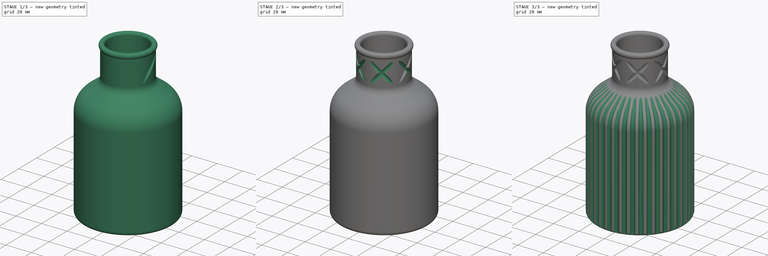
[diagram: build sequence overview — one tinted view per stage of 3, left to right]
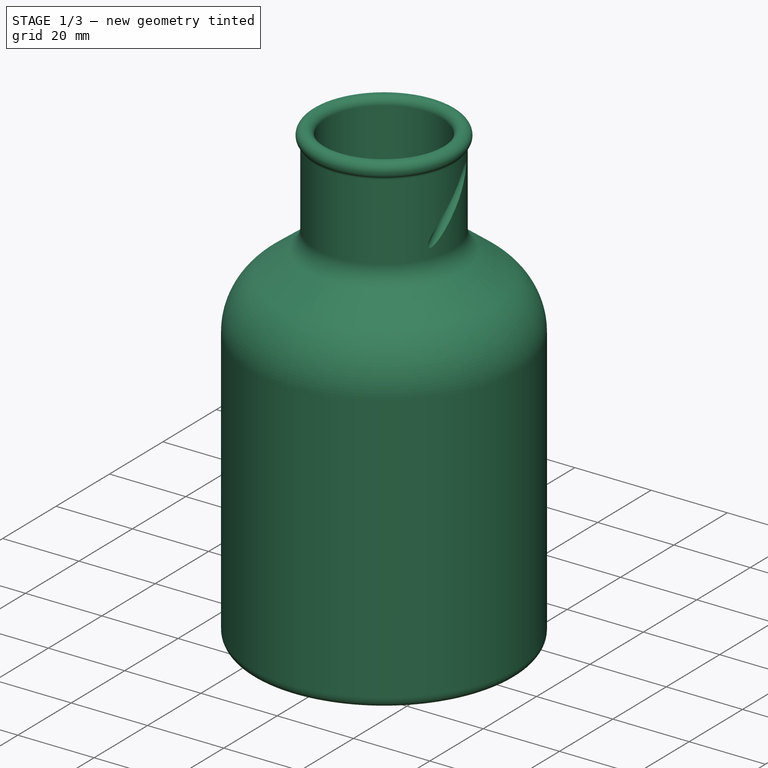
[diagram: stage 1 of 3 — iso view after this stage's code; geometry added in this stage tinted green]
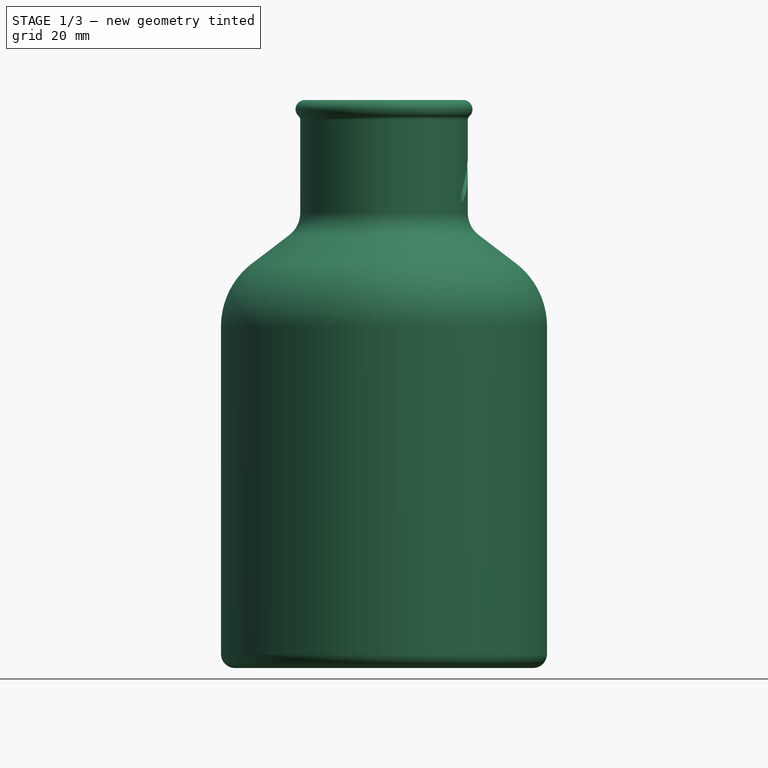
[diagram: stage 1 of 3 — front view after this stage's code; geometry added in this stage tinted green]
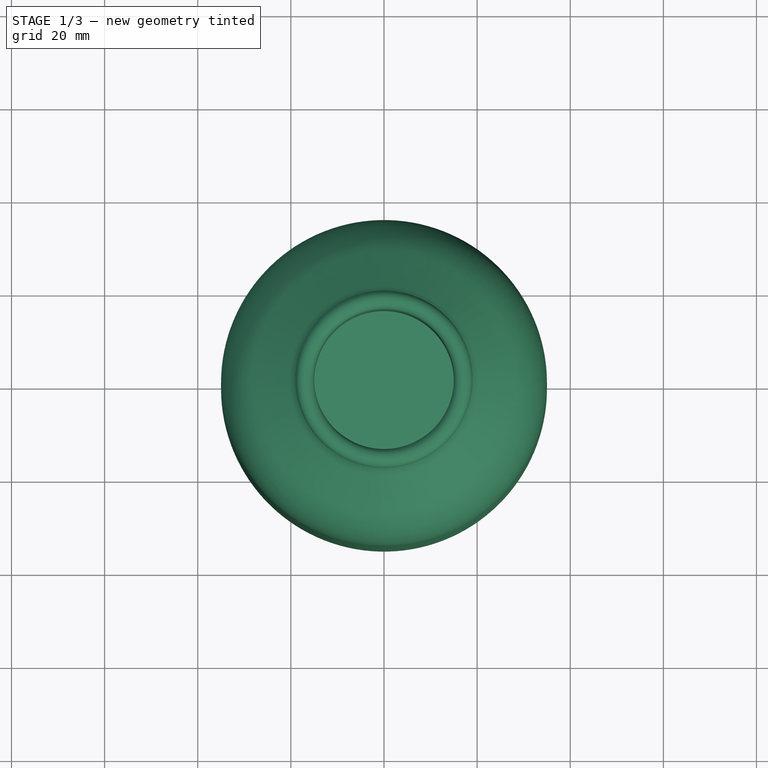
[diagram: stage 1 of 3 — top view after this stage's code; geometry added in this stage tinted green]
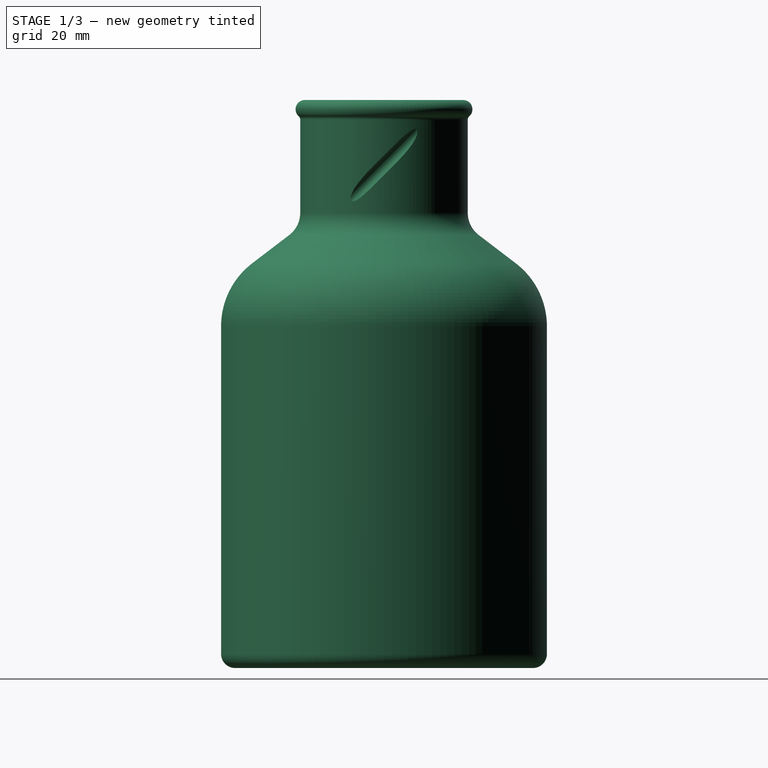
[diagram: stage 1 of 3 — right view after this stage's code; geometry added in this stage tinted green]
FCSTD DOCUMENT  (FreeCAD 1.0R39319 (Git))
Label: vase2
License: All rights reserved
LicenseURL: https://en.wikipedia.org/wiki/All_rights_reserved
objects: Sketcher::SketchObject×5, PartDesign::Pocket×2, PartDesign::PolarPattern×2, PartDesign::Revolution×1, PartDesign::SubtractivePipe×1, PartDesign::Body×1
note: 27 computed .brp shape members not serialized (recipe doc carries the construction recipe); baked Part::Feature solids carry a one-line shape summary decoded from their .brp

FEATURE [Sketcher::SketchObject] Sketch
  ArcFitTolerance = 1e-06
  AttachmentOffset = pos=(35,0,0) rot=(0,0,1;0rad)
  AttachmentSupport = -> [XY_Plane]
  FullyConstrained = false
  MakeInternals = false
  MapMode = 5
  Placement = pos=(35,0,0) rot=(0,0,1;0rad)
  expr: Constraints[23] = 360 / 40
  sketch-geometry (9):
    g0: ArcOfCircle CenterX=0 CenterY=0 CenterZ=0 NormalX=0 NormalY=0 NormalZ=1 AngleXU=0 Radius=1.5 StartAngle=2.16072 EndAngle=4.12247
    g1: ArcOfCircle CenterX=-1.75172 CenterY=2.6167 CenterZ=0 NormalX=0 NormalY=0 NormalZ=1 AngleXU=0 Radius=1.64891 StartAngle=5.30231 EndAngle=6.36173
    g2: ArcOfCircle CenterX=-1.75172 CenterY=-2.6167 CenterZ=0 NormalX=0 NormalY=0 NormalZ=1 AngleXU=0 Radius=1.64891 StartAngle=6.20465 EndAngle=7.26406
    g3: ArcOfCircle [constr] CenterX=-35 CenterY=0 CenterZ=0 NormalX=0 NormalY=0 NormalZ=1 AngleXU=0 Radius=35 StartAngle=6.20465 EndAngle=6.36173
    g4: LineSegment [constr] StartX=-35 StartY=0 StartZ=0 EndX=-0.107893 EndY=2.74607 EndZ=0
    g5: LineSegment [constr] StartX=-35 StartY=0 StartZ=0 EndX=-0.107893 EndY=-2.74607 EndZ=0
    g6: LineSegment StartX=-0.107893 StartY=2.74607 StartZ=0 EndX=1.08363 EndY=2.74607 EndZ=0
    g7: LineSegment StartX=1.08363 StartY=2.74607 StartZ=0 EndX=1.08363 EndY=-2.74607 EndZ=0
    g8: LineSegment StartX=1.08363 StartY=-2.74607 StartZ=0 EndX=-0.107893 EndY=-2.74607 EndZ=0
  constraints (25):
    c: Radius(g0) = 1.5
    c: Coincident(g0,g-1)
    c: PointOnObject(g0,g2)
    c: Tangent(g0,g1) = 1.5708
    c: Tangent(g2,g0) = 1.5708
    c: Coincident(g3,g2)
    c: Coincident(g3,g1)
    c: Radius(g3) = 35
    c: Coincident(g4,g3)
    c: Coincident(g4,g1)
    c: Coincident(g5,g3)
    c: Coincident(g5,g2)
    c: Vertical(g2,g1)
    c: PointOnObject(g4,g-1)
    c: PointOnObject(g0,g3)
    c: PointOnObject(g2,g5)
    c: Coincident(g1,g6)
    c: Horizontal(g6)
    c: Coincident(g6,g7)
    c: Vertical(g7)
    c: Coincident(g7,g8)
    c: Horizontal(g8)
    c: Coincident(g2,g8)
    c: Angle(g5,g4) = 0.15708
    c: Equal(g1,g2)
FEATURE [Sketcher::SketchObject] Sketch001
  ArcFitTolerance = 1e-06
  AttachmentSupport = -> [XZ_Plane]
  FullyConstrained = true
  MakeInternals = false
  MapMode = 5
  Placement = pos=(0,0,0) rot=(1,0,0;1.5708rad)
  sketch-geometry (18):
    g0: LineSegment StartX=0 StartY=0 StartZ=0 EndX=32 EndY=0 EndZ=0
    g1: ArcOfCircle CenterX=32 CenterY=3 CenterZ=0 NormalX=0 NormalY=0 NormalZ=1 AngleXU=0 Radius=3 StartAngle=4.71239 EndAngle=6.28319
    g2: LineSegment StartX=35 StartY=3 StartZ=0 EndX=35 EndY=73.4123 EndZ=0
    g3: ArcOfCircle CenterX=18 CenterY=73.4123 CenterZ=0 NormalX=0 NormalY=0 NormalZ=1 AngleXU=0 Radius=17 StartAngle=0 EndAngle=0.91909
    g4: ArcOfCircle CenterX=24 CenterY=97.7639 CenterZ=0 NormalX=0 NormalY=0 NormalZ=1 AngleXU=0 Radius=6 StartAngle=3.14159 EndAngle=4.06068
    g5: LineSegment StartX=18 StartY=97.7639 StartZ=0 EndX=18 EndY=117.764 EndZ=0
    g6: ArcOfCircle CenterX=17 CenterY=120 CenterZ=0 NormalX=0 NormalY=0 NormalZ=1 AngleXU=0 Radius=2 StartAngle=5.44212 EndAngle=9.42478
    g7: LineSegment StartX=15 StartY=120 StartZ=0 EndX=15 EndY=97.7639 EndZ=0
    g8: ArcOfCircle CenterX=24 CenterY=97.7639 CenterZ=0 NormalX=0 NormalY=0 NormalZ=1 AngleXU=0 Radius=9 StartAngle=3.14159 EndAngle=4.06068
    g9: ArcOfCircle CenterX=18 CenterY=73.4123 CenterZ=0 NormalX=0 NormalY=0 NormalZ=1 AngleXU=0 Radius=14 StartAngle=2e-16 EndAngle=0.91909
    g10: LineSegment StartX=32 StartY=73.4123 StartZ=0 EndX=32 EndY=3 EndZ=0
    g11: LineSegment StartX=32 StartY=3 StartZ=0 EndX=0 EndY=3 EndZ=0
    g12: LineSegment StartX=0 StartY=3 StartZ=0 EndX=0 EndY=0 EndZ=0
    g13: LineSegment [constr] StartX=15 StartY=117.764 StartZ=0 EndX=18 EndY=117.764 EndZ=0
    g14: LineSegment StartX=18.5411 StartY=90.6085 StartZ=0 EndX=26.4916 EndY=84.543 EndZ=0
    g15: LineSegment StartX=20.3607 StartY=92.9936 StartZ=0 EndX=28.3112 EndY=86.9282 EndZ=0
    g16: ArcOfCircle CenterX=19 CenterY=117.764 CenterZ=0 NormalX=0 NormalY=0 NormalZ=1 AngleXU=0 Radius=1 StartAngle=2.30052 EndAngle=3.14159
    g17: GeomPoint X=15 Y=108.882 Z=0
  constraints (45):
    c: Horizontal(g0)
    c: Tangent(g0,g1) = -1.5708
    c: Vertical(g2)
    c: Tangent(g2,g3) = -1.5708
    c: Tangent(g7,g8) = -1.5708
    c: Coincident(g10,g1)
    c: Vertical(g10)
    c: Coincident(g10,g11)
    c: PointOnObject(g11,g-2)
    c: Horizontal(g11)
    c: Coincident(g11,g12)
    c: Coincident(g12,g0)
    c: Coincident(g0,g-1)
    c: Tangent(g1,g2) = -1.5708
    c: Tangent(g9,g10) = 1.5708
    c: Tangent(g4,g5) = 1.5708
    c: Tangent(g6,g7) = -1.5708
    c: Coincident(g3,g9)
    c: Coincident(g4,g8)
    c: Vertical(g5)
    c: Vertical(g7)
    c: PointOnObject(g13,g7)
    c: Equal(g12,g13)
    c: DistanceY(g12,g12) = 3
    c: Diameter(g6) = 4
    c: Radius(g4) = 6
    c: DistanceY(g5,g5) = 20
    c: DistanceX(g6) = 15
    c: DistanceY(g6) = 120
    c: Vertical(g3,g4)
    c: DistanceX(g1) = 35
    c: Tangent(g8,g14) = -1.5708
    c: Tangent(g4,g15) = -1.5708
    c: Tangent(g3,g15) = 1.5708
    c: Tangent(g9,g14) = 1.5708
    c: Distance(g15) = 10
    c: Coincident(g5,g13)
    c: Tangent(g16,g6) = 1.5708
    c: Tangent(g16,g5) = 1.5708
    c: Radius(g16) = 1
    c: DistanceX(g5) = 18
    c: Horizontal(g13)
    c: Symmetric(g7,g7,g17)
    c: DistanceY(g17) = 108.882
    c: Radius(g3) = 17
FEATURE [PartDesign::Revolution] Revolution
  Angle = 360
  Angle2 = 60
  Axis = (0,2e-16,1)
  Base = (0,0,0)
  Placement = pos=(0,0,0) rot=(1,0,0;1.5708rad)
  Profile = -> Sketch001
  ReferenceAxis = -> Sketch001 [V_Axis]
  Refine = true
  Reversed = true
  Suppressed = false
  Type = 0
FEATURE [Sketcher::SketchObject] Sketch002
  ArcFitTolerance = 1e-06
  AttachmentOffset = pos=(18,0,108) rot=(1,0,0;-0.785398rad)
  AttachmentSupport = -> [XY_Plane]
  FullyConstrained = true
  MakeInternals = false
  MapMode = 5
  Placement = pos=(18,0,108) rot=(1,0,0;5.49779rad)
  sketch-geometry (1):
    g0: Circle CenterX=0 CenterY=0 CenterZ=0 NormalX=0 NormalY=0 NormalZ=1 AngleXU=0 Radius=1.5
  constraints (2):
    c: Coincident(g0,g-1)
    c: Radius(g0) = 1.5
FEATURE [PartDesign::Pocket] Pocket
  BaseFeature = -> Revolution
  Direction = (0,-0.707107,-0.707107)
  Length = 25
  Length2 = 5
  Midplane = true
  Placement = pos=(0,0,0) rot=(1,0,0;1.5708rad)
  Profile = -> Sketch002
  ReferenceAxis = -> Sketch002 [N_Axis]
  Refine = true
  Suppressed = false
  Type = 0
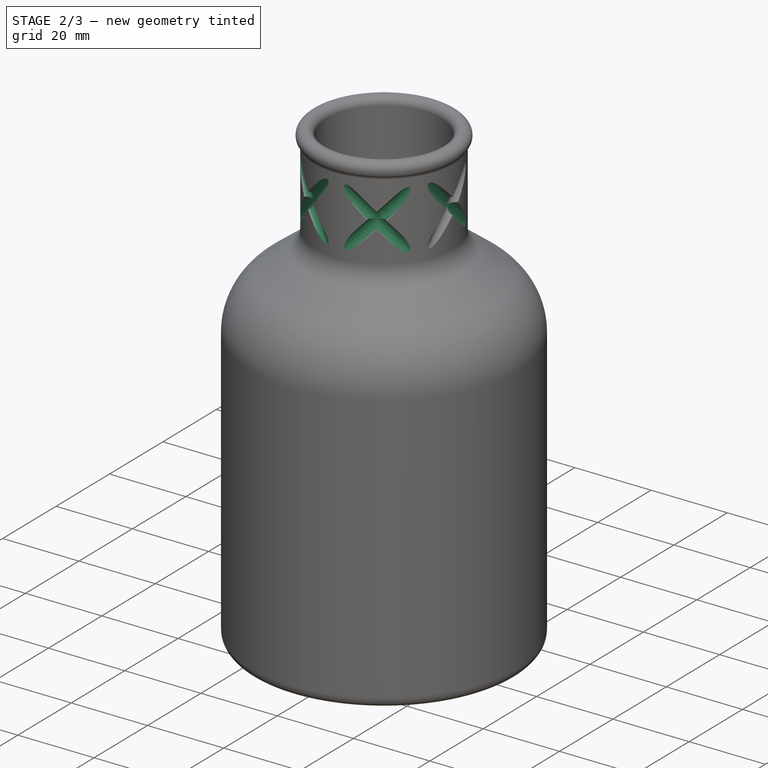
[diagram: stage 2 of 3 — iso view after this stage's code; geometry added in this stage tinted green]
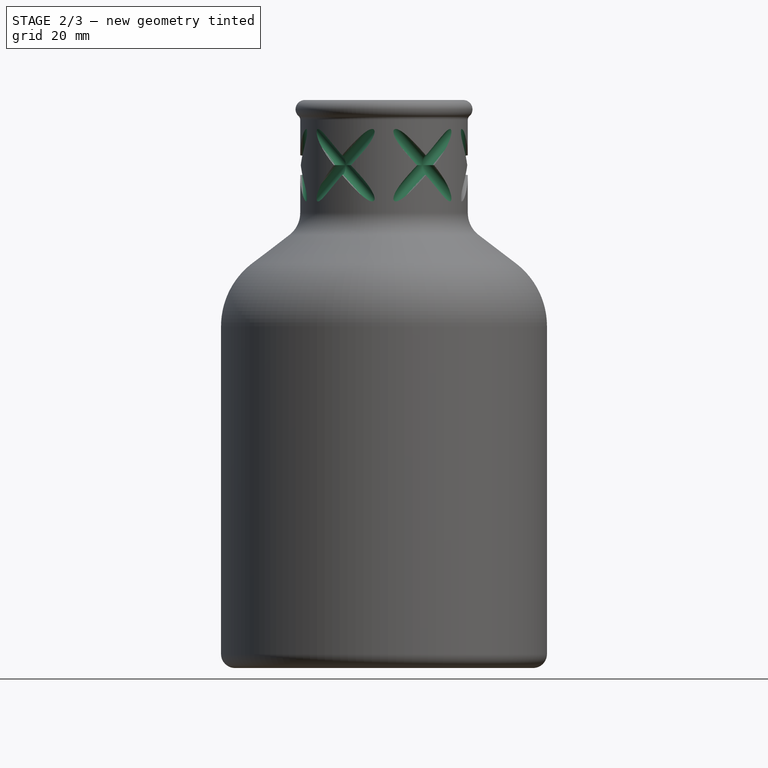
[diagram: stage 2 of 3 — front view after this stage's code; geometry added in this stage tinted green]
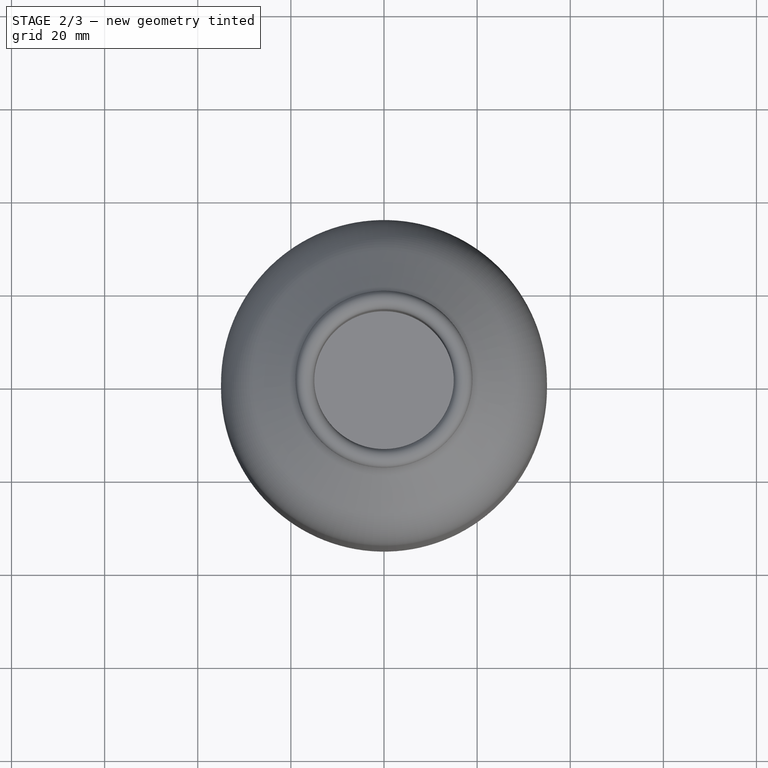
[diagram: stage 2 of 3 — top view after this stage's code; geometry added in this stage tinted green]
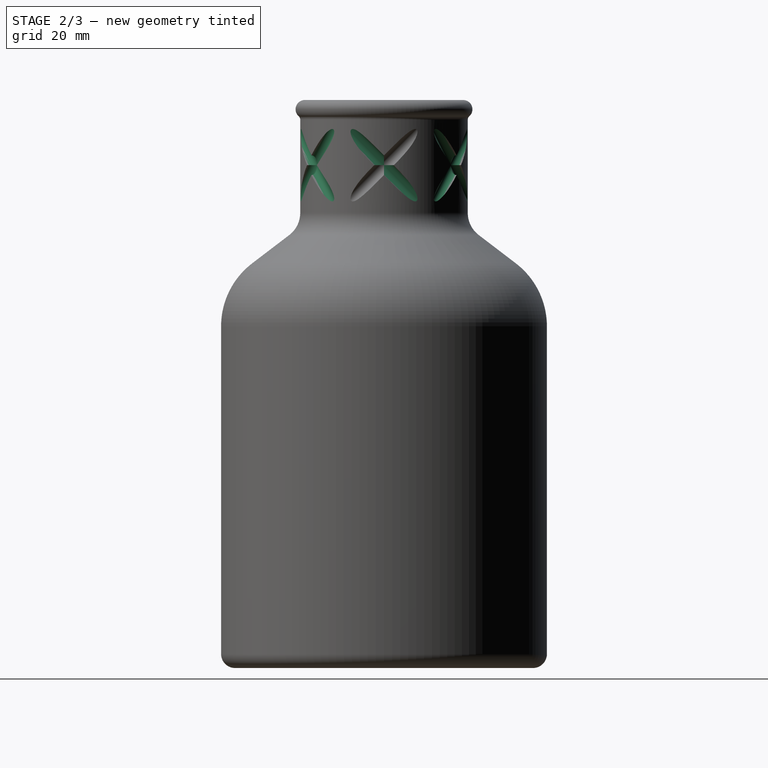
[diagram: stage 2 of 3 — right view after this stage's code; geometry added in this stage tinted green]
FEATURE [Sketcher::SketchObject] Sketch003
  ArcFitTolerance = 1e-06
  AttachmentOffset = pos=(18,0,108) rot=(1,0,0;0.785398rad)
  AttachmentSupport = -> [XY_Plane]
  FullyConstrained = true
  MakeInternals = false
  MapMode = 5
  Placement = pos=(18,0,108) rot=(1,0,0;0.785398rad)
  sketch-geometry (1):
    g0: Circle CenterX=0 CenterY=0 CenterZ=0 NormalX=0 NormalY=0 NormalZ=1 AngleXU=0 Radius=1.5
  constraints (2):
    c: Coincident(g0,g-1)
    c: Radius(g0) = 1.5
FEATURE [PartDesign::Pocket] Pocket001
  BaseFeature = -> Pocket
  Direction = (0,0.707107,-0.707107)
  Length = 25
  Length2 = 5
  Midplane = true
  Placement = pos=(0,0,0) rot=(1,0,0;1.5708rad)
  Profile = -> Sketch003
  ReferenceAxis = -> Sketch003 [N_Axis]
  Refine = true
  Suppressed = false
  Type = 0
FEATURE [PartDesign::PolarPattern] PolarPattern
  Angle = 360
  Axis = -> Z_Axis
  BaseFeature = -> Pocket001
  Mode = 0
  Occurrences = 6
  Offset = 120
  Originals = -> [Pocket,Pocket001]
  Placement = pos=(0,0,0) rot=(1,0,0;1.5708rad)
  Refine = true
  Suppressed = false
  TransformMode = 0
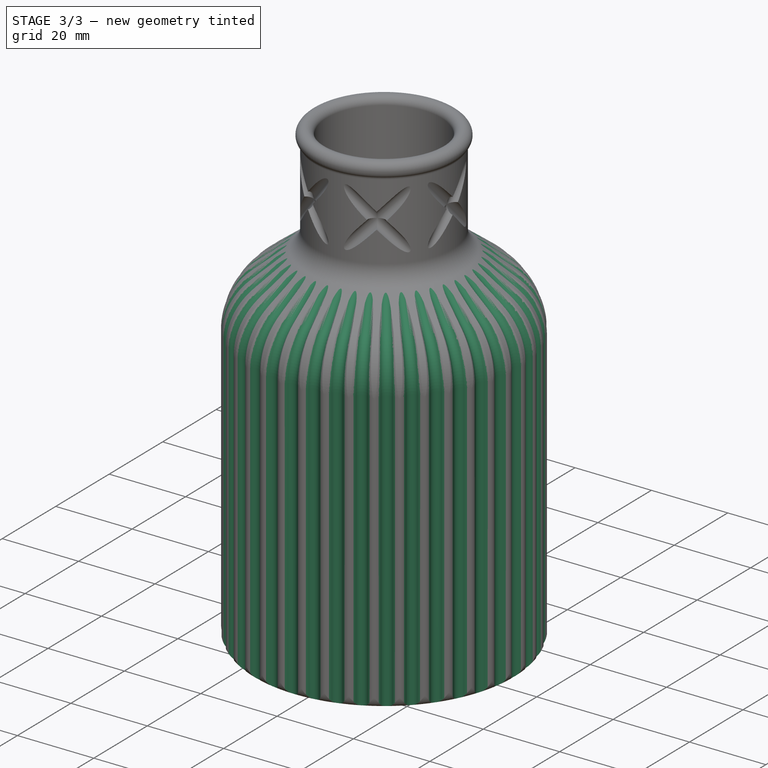
[diagram: stage 3 of 3 — iso view after this stage's code; geometry added in this stage tinted green]
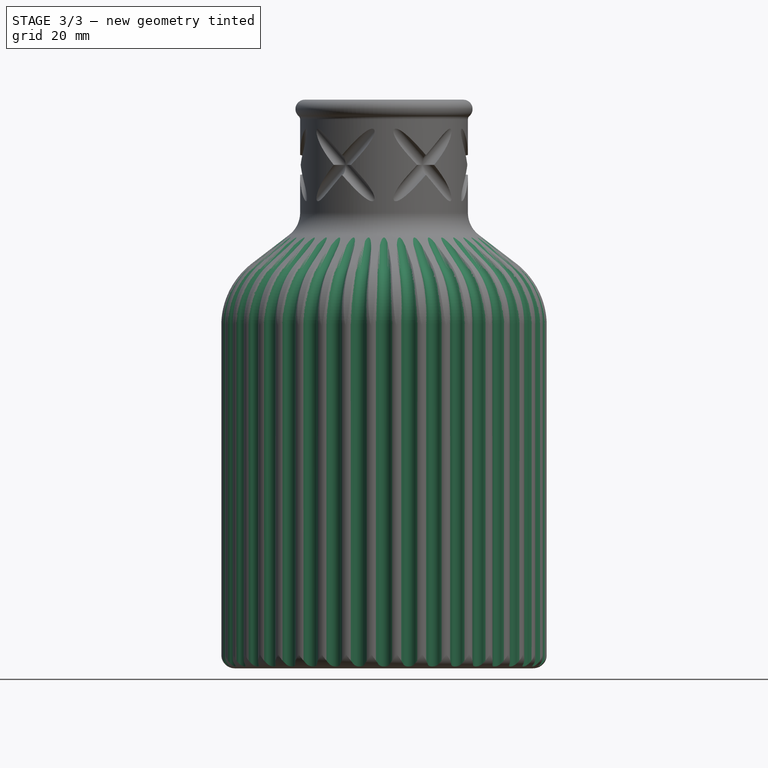
[diagram: stage 3 of 3 — front view after this stage's code; geometry added in this stage tinted green]
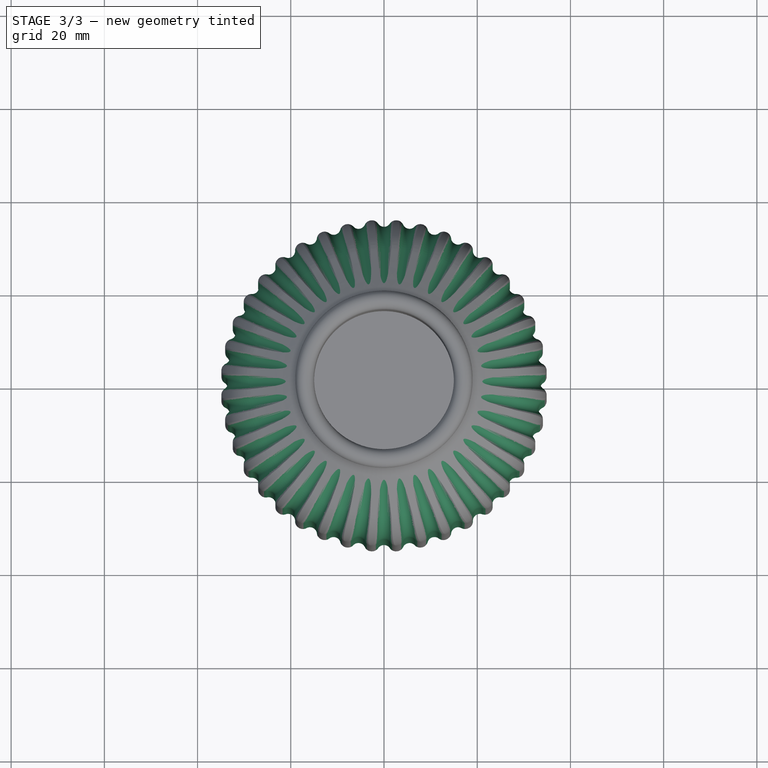
[diagram: stage 3 of 3 — top view after this stage's code; geometry added in this stage tinted green]
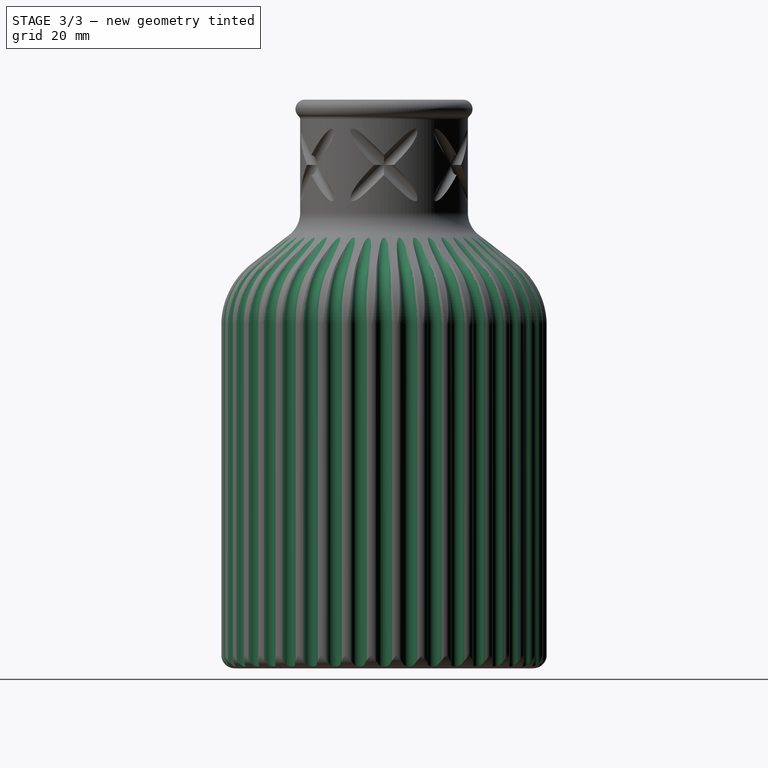
[diagram: stage 3 of 3 — right view after this stage's code; geometry added in this stage tinted green]
FEATURE [Sketcher::SketchObject] Sketch004
  ArcFitTolerance = 1e-06
  AttachmentSupport = -> [XZ_Plane]
  ExternalGeometry = -> [PolarPattern]
  FullyConstrained = false
  MakeInternals = false
  MapMode = 5
  Placement = pos=(0,0,0) rot=(1,0,0;1.5708rad)
  sketch-geometry (4):
    g0: LineSegment StartX=35 StartY=0 StartZ=0 EndX=35 EndY=73.973 EndZ=0
    g1: ArcOfCircle CenterX=18 CenterY=73.973 CenterZ=0 NormalX=0 NormalY=0 NormalZ=1 AngleXU=0 Radius=17 StartAngle=1e-16 EndAngle=0.80964
    g2: LineSegment StartX=29.7259 StartY=86.2817 StartZ=0 EndX=21.4644 EndY=94.1521 EndZ=0
    g3: LineSegment [constr] StartX=21.4644 StartY=94.1521 StartZ=0 EndX=20.3607 EndY=92.9936 EndZ=0
  constraints (10):
    c: PointOnObject(g0,g-1)
    c: Vertical(g0)
    c: Tangent(g0,g1) = -1.5708
    c: Tangent(g1,g2) = -1.5708
    c: DistanceX(g0) = 35
    c: Radius(g1) = 17
    c: Coincident(g2,g3)
    c: Coincident(g3,g-3)
    c: Perpendicular(g2,g3)
    c: Distance(g3) = 1.6
FEATURE [PartDesign::SubtractivePipe] SubtractivePipe
  AuxilleryCurvelinear = true
  AuxillerySpineTangent = false
  BaseFeature = -> PolarPattern
  Binormal = (0,0,0)
  Mode = 0
  Placement = pos=(0,0,0) rot=(1,0,0;1.5708rad)
  Profile = -> Sketch
  Refine = true
  Spine = -> Sketch004
  SpineTangent = false
  Suppressed = false
  Transformation = 0
  Transition = 0
FEATURE [PartDesign::PolarPattern] PolarPattern001
  Angle = 360
  Axis = -> Z_Axis
  BaseFeature = -> SubtractivePipe
  Mode = 0
  Occurrences = 40
  Offset = 120
  Originals = -> [SubtractivePipe]
  Placement = pos=(0,0,0) rot=(1,0,0;1.5708rad)
  Refine = true
  Suppressed = false
  TransformMode = 0
FEATURE [PartDesign::Body] Body
  AllowCompound = false
  Group = -> [Sketch001,Revolution,Sketch002,Pocket,Sketch003,Pocket001,PolarPattern,Sketch,Sketch004,SubtractivePipe,PolarPattern001]
  Origin = -> Origin
  Tip = -> PolarPattern001
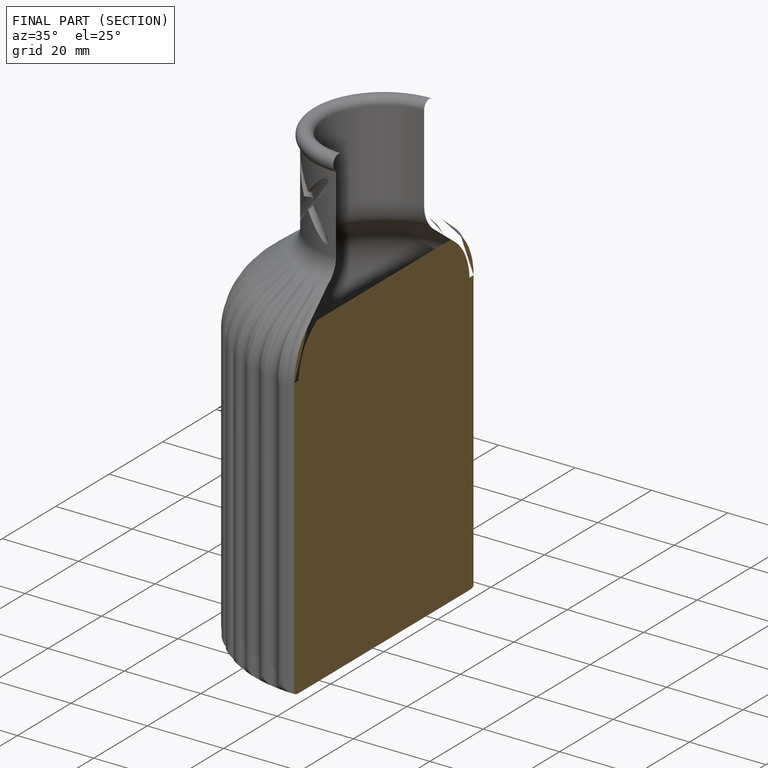
[diagram: finished part — half-section view (interior)]
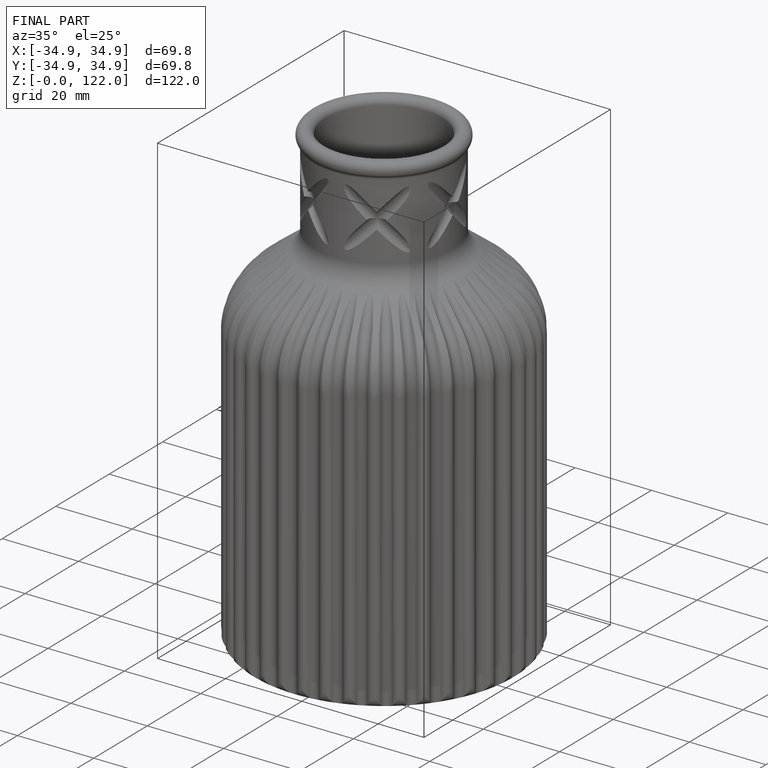
[diagram: finished part — iso view with bounding-box wireframe]
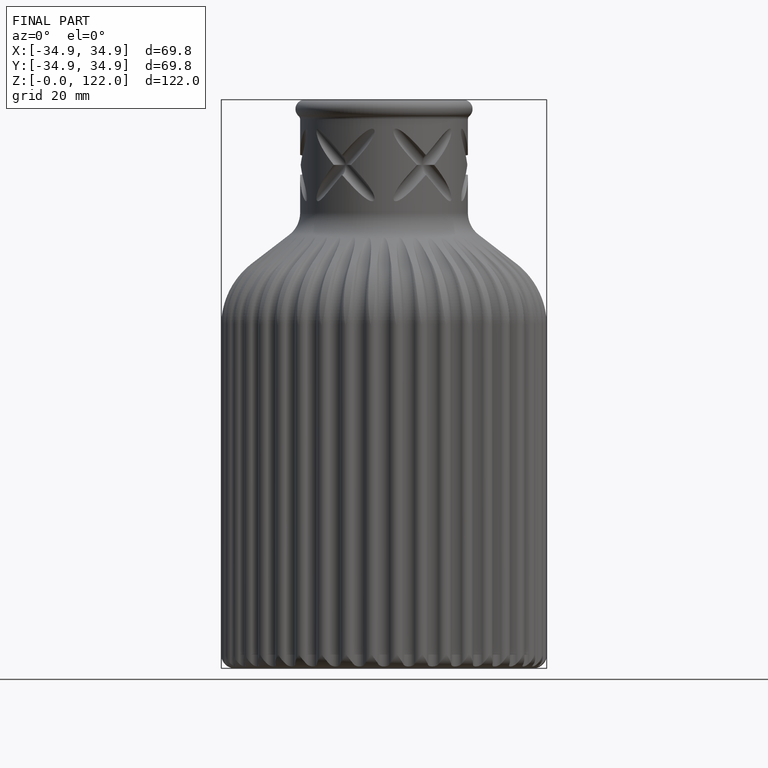
[diagram: finished part — front view with bounding-box wireframe]
